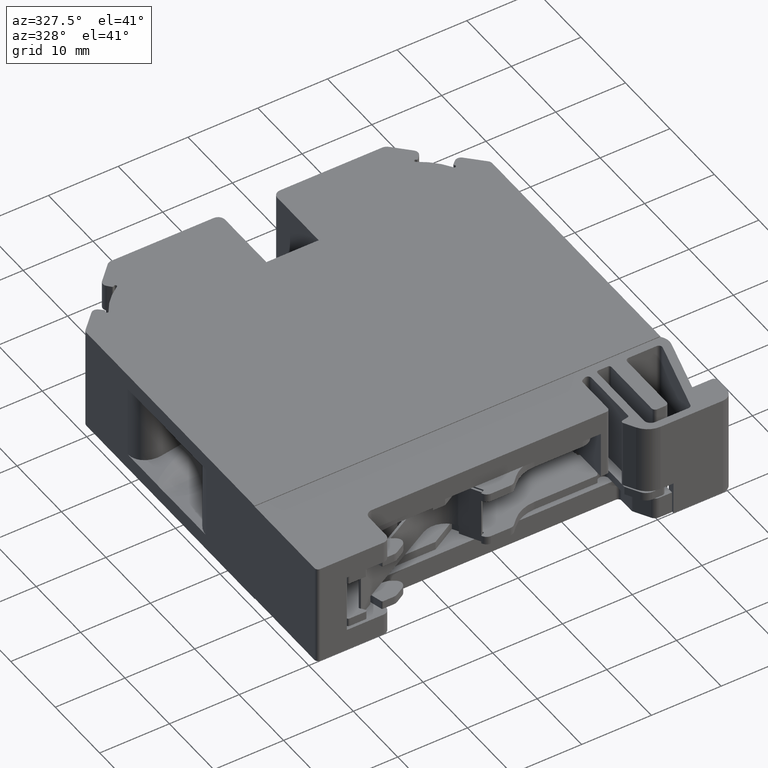
[diagram: clean part render]
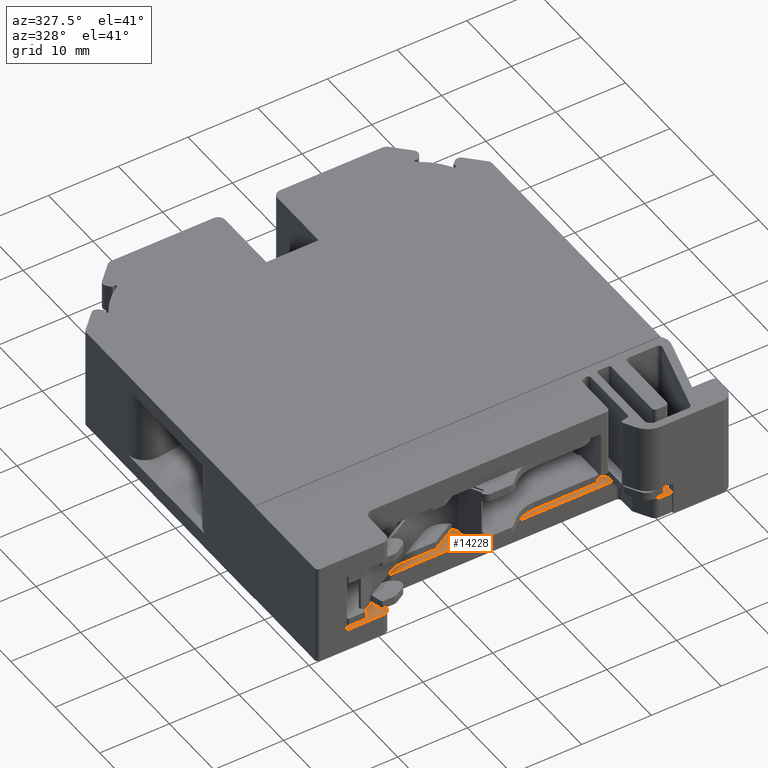
[diagram: same view with one face highlighted and labeled with its STEP entity id]
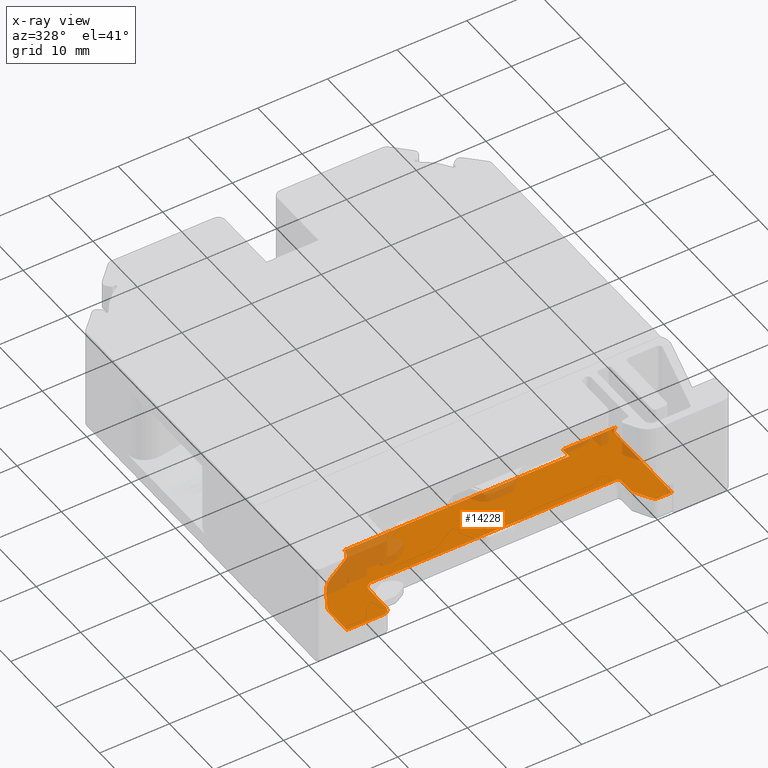
[diagram: x-ray of the same camera — body ghosted, the highlighted face saturated]
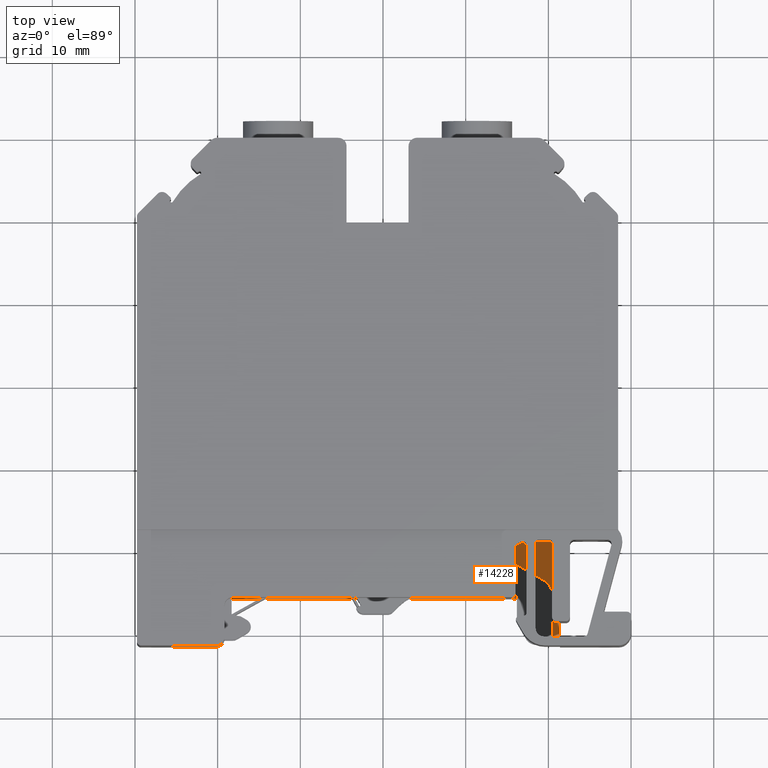
[diagram: same view with one face highlighted and labeled with its STEP entity id]
A machine part, auxiliary view. The second image highlights one B-rep face of the part: STEP entity #14228.
The next image is the same camera in x-ray: the body ghosted, the highlighted face saturated — about 19% of this face is hidden behind the body in this view.
A second angle (top view) of the same face is appended — the face is thin or edge-on in the first view.
In plain terms, the highlighted planar face has unit normal (-0, -0, -1).
Its self-contained STEP definition (entity closure, byte-faithful):
#722 = CARTESIAN_POINT ( 'NONE',  ( -9.182373477858451600, -96.56132526993910400, -108.4951853950753800 ) ) ;
#753 = CARTESIAN_POINT ( 'NONE',  ( -8.182373388613443800, -95.56131407969034800, -108.4951853950755700 ) ) ;
#767 = CARTESIAN_POINT ( 'NONE',  ( 29.52603889127261600, -101.1332000684360000, -108.4951853950821600 ) ) ;
#770 = CARTESIAN_POINT ( 'NONE',  ( 28.66001346110071100, -100.6332000215236900, -108.4951853950818600 ) ) ;
#771 = CARTESIAN_POINT ( 'NONE',  ( 32.08748125167868200, -87.38320129209705600, -108.4951853950789300 ) ) ;
#795 = CARTESIAN_POINT ( 'NONE',  ( -9.182373477883530200, -100.3832003462174800, -108.4951853950753800 ) ) ;
#811 = CARTESIAN_POINT ( 'NONE',  ( 31.35764037842765000, -101.1332000684356700, -108.4951853950822700 ) ) ;
#817 = CARTESIAN_POINT ( 'NONE',  ( -10.18237374994341100, -101.3832003462193100, -108.4951853950752000 ) ) ;
#840 = CARTESIAN_POINT ( 'NONE',  ( 31.35763746355057400, -88.38320141212136600, -108.4951853950822700 ) ) ;
#843 = CARTESIAN_POINT ( 'NONE',  ( 24.45763187254057100, -87.38320129209705600, -108.4951853950775700 ) ) ;
#945 = DIRECTION ( 'NONE',  ( 0.0000000000000000000, 0.0000000000000000000, 1.000000000000000000 ) ) ;
#947 = CARTESIAN_POINT ( 'NONE',  ( -13.18239060679382000, -97.59733846197760000, -108.4951853950743700 ) ) ;
#976 = DIRECTION ( 'NONE',  ( 1.000000000000000000, 0.0000000000000000000, 0.0000000000000000000 ) ) ;
#1956 = LINE ( 'NONE', #1979, #7068 ) ;
#1979 = CARTESIAN_POINT ( 'NONE',  ( -7.832360280724089700, -88.87787397200389700, -108.4951853950760100 ) ) ;
#1980 = DIRECTION ( 'NONE',  ( -0.0000000000000000000, -1.000000000000000000, 0.0000000000000000000 ) ) ;
#3159 = CARTESIAN_POINT ( 'NONE',  ( -15.43239094388466400, -101.3831984417975000, -108.4951853950747000 ) ) ;
#3324 = CARTESIAN_POINT ( 'NONE',  ( -15.13094716103084300, -96.47233841715346600, -108.4951853950743700 ) ) ;
#3357 = CARTESIAN_POINT ( 'NONE',  ( -7.832360280724086200, -88.87787397200381200, -108.4951853950757900 ) ) ;
#3361 = CARTESIAN_POINT ( 'NONE',  ( -7.832360280724088000, -88.84391962402993700, -108.4951853950758600 ) ) ;
#3402 = CARTESIAN_POINT ( 'NONE',  ( 27.42462696525889100, -98.49344757605811700, -108.4951853950816600 ) ) ;
#3404 = CARTESIAN_POINT ( 'NONE',  ( -13.80660845408597800, -94.17851721250438900, -108.4951853950748300 ) ) ;
#3409 = CARTESIAN_POINT ( 'NONE',  ( 24.45763187254063100, -88.84391962402993700, -108.4951853950815200 ) ) ;
#3427 = CARTESIAN_POINT ( 'NONE',  ( 26.85763427980725000, -95.56131808383656800, -108.4951853950814600 ) ) ;
#3431 = CARTESIAN_POINT ( 'NONE',  ( -15.43239018943153700, -97.59646913728329300, -108.4951853950743300 ) ) ;
#3453 = CARTESIAN_POINT ( 'NONE',  ( -11.88497784360102300, -92.25688605878271200, -108.4951853950750300 ) ) ;
#3466 = CARTESIAN_POINT ( 'NONE',  ( 27.35763968069512600, -98.24344822140024300, -108.4951853950815500 ) ) ;
#3488 = CARTESIAN_POINT ( 'NONE',  ( 27.35763424945268000, -96.06131711158846500, -108.4951853950814800 ) ) ;
#3491 = CARTESIAN_POINT ( 'NONE',  ( -8.732359627521443500, -90.43671932168889800, -108.4951853950756200 ) ) ;
#5110 = PLANE ( 'NONE',  #6902 ) ;
#5124 = FACE_OUTER_BOUND ( 'NONE', #10269, .T. ) ;
#5134 = CARTESIAN_POINT ( 'NONE',  ( 25.20763878795164800, -88.39914594549648500, -108.4951853950816600 ) ) ;
#5150 = DIRECTION ( 'NONE',  ( -1.000000000000000000, 0.0000000000000000000, 1.766263902812515100E-013 ) ) ;
#5151 = DIRECTION ( 'NONE',  ( -1.766263902812515100E-013, -2.118238310450105200E-014, -1.000000000000000000 ) ) ;
#5171 = VERTEX_POINT ( 'NONE', #722 ) ;
#5207 = VERTEX_POINT ( 'NONE', #753 ) ;
#5216 = VERTEX_POINT ( 'NONE', #771 ) ;
#5230 = VERTEX_POINT ( 'NONE', #767 ) ;
#5232 = VERTEX_POINT ( 'NONE', #770 ) ;
#5243 = VERTEX_POINT ( 'NONE', #795 ) ;
#5258 = VERTEX_POINT ( 'NONE', #811 ) ;
#5267 = VERTEX_POINT ( 'NONE', #817 ) ;
#5272 = VERTEX_POINT ( 'NONE', #840 ) ;
#5279 = VERTEX_POINT ( 'NONE', #843 ) ;
#6510 = VERTEX_POINT ( 'NONE', #3159 ) ;
#6624 = VECTOR ( 'NONE', #11511, 1000.000000000000000 ) ;
#6780 = CIRCLE ( 'NONE', #6892, 1.799999999999999600 ) ;
#6892 = AXIS2_PLACEMENT_3D ( 'NONE', #11501, #11505, #11524 ) ;
#6902 = AXIS2_PLACEMENT_3D ( 'NONE', #5134, #5151, #5150 ) ;
#7068 = VECTOR ( 'NONE', #1980, 1000.000000000000000 ) ;
#7137 = CIRCLE ( 'NONE', #7181, 2.249999499092280300 ) ;
#7181 = AXIS2_PLACEMENT_3D ( 'NONE', #947, #945, #976 ) ;
#7381 = CIRCLE ( 'NONE', #7396, 0.5000000000000004400 ) ;
#7396 = AXIS2_PLACEMENT_3D ( 'NONE', #11949, #11954, #11953 ) ;
#7451 = VECTOR ( 'NONE', #11881, 999.9999999999998900 ) ;
#7466 = AXIS2_PLACEMENT_3D ( 'NONE', #12090, #12093, #12053 ) ;
#7502 = VECTOR ( 'NONE', #12118, 1000.000000000000000 ) ;
#7516 = CIRCLE ( 'NONE', #7466, 0.4999999999996743200 ) ;
#7544 = CIRCLE ( 'NONE', #7557, 5.249998643993779800 ) ;
#7557 = AXIS2_PLACEMENT_3D ( 'NONE', #11467, #11461, #11483 ) ;
#7627 = VECTOR ( 'NONE', #11805, 1000.000000000000100 ) ;
#7798 = CIRCLE ( 'NONE', #7821, 0.9999999999999991100 ) ;
#7805 = AXIS2_PLACEMENT_3D ( 'NONE', #12524, #12565, #12569 ) ;
#7813 = CIRCLE ( 'NONE', #7805, 1.000000000000021800 ) ;
#7821 = AXIS2_PLACEMENT_3D ( 'NONE', #12549, #12574, #12582 ) ;
#7834 = VECTOR ( 'NONE', #12593, 1000.000000000000100 ) ;
#7836 = VECTOR ( 'NONE', #12628, 1000.000000000000000 ) ;
#7837 = VECTOR ( 'NONE', #12621, 1000.000000000000100 ) ;
#7840 = AXIS2_PLACEMENT_3D ( 'NONE', #12674, #12665, #12644 ) ;
#7842 = CIRCLE ( 'NONE', #7846, 0.9999999999996088700 ) ;
#7844 = CIRCLE ( 'NONE', #7840, 1.050000000000002300 ) ;
#7846 = AXIS2_PLACEMENT_3D ( 'NONE', #12599, #12610, #12611 ) ;
#7850 = VECTOR ( 'NONE', #12632, 1000.000000000000000 ) ;
#7856 = VECTOR ( 'NONE', #12727, 1000.000000000000000 ) ;
#7865 = VECTOR ( 'NONE', #12698, 1000.000000000000000 ) ;
#7868 = VECTOR ( 'NONE', #12746, 1000.000000000000100 ) ;
#7883 = VECTOR ( 'NONE', #12747, 999.9999999999998900 ) ;
#7893 = VECTOR ( 'NONE', #12734, 1000.000000000000000 ) ;
#8060 = VERTEX_POINT ( 'NONE', #3361 ) ;
#8082 = VERTEX_POINT ( 'NONE', #3357 ) ;
#8107 = VERTEX_POINT ( 'NONE', #3324 ) ;
#8151 = VERTEX_POINT ( 'NONE', #3431 ) ;
#8166 = VERTEX_POINT ( 'NONE', #3402 ) ;
#8167 = VERTEX_POINT ( 'NONE', #3427 ) ;
#8179 = VERTEX_POINT ( 'NONE', #3404 ) ;
#8182 = VERTEX_POINT ( 'NONE', #3409 ) ;
#8186 = VERTEX_POINT ( 'NONE', #3466 ) ;
#8197 = VERTEX_POINT ( 'NONE', #3488 ) ;
#8212 = VERTEX_POINT ( 'NONE', #3453 ) ;
#8220 = VERTEX_POINT ( 'NONE', #3491 ) ;
#9099 = ORIENTED_EDGE ( 'NONE', *, *, #17505, .F. ) ;
#9100 = ORIENTED_EDGE ( 'NONE', *, *, #17701, .F. ) ;
#9105 = ORIENTED_EDGE ( 'NONE', *, *, #17434, .F. ) ;
#9110 = ORIENTED_EDGE ( 'NONE', *, *, #17493, .F. ) ;
#9118 = ORIENTED_EDGE ( 'NONE', *, *, #17707, .F. ) ;
#9119 = ORIENTED_EDGE ( 'NONE', *, *, #17136, .T. ) ;
#9121 = ORIENTED_EDGE ( 'NONE', *, *, #17738, .F. ) ;
#9123 = ORIENTED_EDGE ( 'NONE', *, *, #17453, .F. ) ;
#9125 = ORIENTED_EDGE ( 'NONE', *, *, #17740, .F. ) ;
#9126 = ORIENTED_EDGE ( 'NONE', *, *, #17709, .F. ) ;
#9127 = ORIENTED_EDGE ( 'NONE', *, *, #17734, .F. ) ;
#9132 = ORIENTED_EDGE ( 'NONE', *, *, #17456, .F. ) ;
#9135 = ORIENTED_EDGE ( 'NONE', *, *, #17548, .F. ) ;
#9137 = ORIENTED_EDGE ( 'NONE', *, *, #17711, .F. ) ;
#9141 = ORIENTED_EDGE ( 'NONE', *, *, #17683, .T. ) ;
#9145 = ORIENTED_EDGE ( 'NONE', *, *, #17694, .F. ) ;
#9147 = ORIENTED_EDGE ( 'NONE', *, *, #17555, .F. ) ;
#9154 = ORIENTED_EDGE ( 'NONE', *, *, #17465, .F. ) ;
#9158 = ORIENTED_EDGE ( 'NONE', *, *, #17713, .T. ) ;
#9159 = ORIENTED_EDGE ( 'NONE', *, *, #17723, .F. ) ;
#9160 = ORIENTED_EDGE ( 'NONE', *, *, #17742, .F. ) ;
#9161 = ORIENTED_EDGE ( 'NONE', *, *, #17096, .T. ) ;
#9162 = ORIENTED_EDGE ( 'NONE', *, *, #17698, .F. ) ;
#10269 = EDGE_LOOP ( 'NONE', ( #9162, #9123, #9161, #9132, #9110, #9105, #9154, #9119, #9147, #9118, #9145, #9127, #9141, #9125, #9099, #9160, #9135, #9100, #9126, #9159, #9137, #9158, #9121 ) ) ;
#11461 = DIRECTION ( 'NONE',  ( -0.0000000000000000000, -0.0000000000000000000, -1.000000000000000000 ) ) ;
#11467 = CARTESIAN_POINT ( 'NONE',  ( -9.259976616430210000, -96.80351715436199800, -108.4951853950750100 ) ) ;
#11483 = DIRECTION ( 'NONE',  ( 1.000000000000000000, 7.930166509866378700E-015, 0.0000000000000000000 ) ) ;
#11501 = CARTESIAN_POINT ( 'NONE',  ( -9.632360280724078900, -88.87787397200381200, -108.4951853950756100 ) ) ;
#11505 = DIRECTION ( 'NONE',  ( 0.0000000000000000000, 0.0000000000000000000, 1.000000000000000000 ) ) ;
#11506 = LINE ( 'NONE', #11534, #6624 ) ;
#11511 = DIRECTION ( 'NONE',  ( 1.000000000000000000, -0.0000000000000000000, -1.766263902812515100E-013 ) ) ;
#11524 = DIRECTION ( 'NONE',  ( 1.000000000000000000, 0.0000000000000000000, 0.0000000000000000000 ) ) ;
#11534 = CARTESIAN_POINT ( 'NONE',  ( 25.20763878795164800, -88.84391962402993700, -108.4951853950816600 ) ) ;
#11785 = LINE ( 'NONE', #11799, #7627 ) ;
#11799 = CARTESIAN_POINT ( 'NONE',  ( -15.13094714392770600, -96.47233838752988800, -108.4951853950743900 ) ) ;
#11805 = DIRECTION ( 'NONE',  ( 0.5000001180687242400, 0.8660253356174181200, -9.955082964624122600E-014 ) ) ;
#11881 = DIRECTION ( 'NONE',  ( 0.8660251942694885400, 0.5000003628903629800, -1.639260010307463600E-013 ) ) ;
#11888 = LINE ( 'NONE', #11892, #7451 ) ;
#11892 = CARTESIAN_POINT ( 'NONE',  ( -11.88497784360102300, -92.25688605878271200, -108.4951853950750400 ) ) ;
#11949 = CARTESIAN_POINT ( 'NONE',  ( 26.85763424945354700, -96.06131808383648300, -108.4951853950814600 ) ) ;
#11953 = DIRECTION ( 'NONE',  ( 1.000000000000000000, 0.0000000000000000000, 0.0000000000000000000 ) ) ;
#11954 = DIRECTION ( 'NONE',  ( 0.0000000000000000000, 0.0000000000000000000, 1.000000000000000000 ) ) ;
#12053 = DIRECTION ( 'NONE',  ( 1.000000000000000000, 0.0000000000000000000, 0.0000000000000000000 ) ) ;
#12090 = CARTESIAN_POINT ( 'NONE',  ( 27.85763968069325000, -98.24344759951456800, -108.4951853950816100 ) ) ;
#12093 = DIRECTION ( 'NONE',  ( -0.0000000000000000000, -0.0000000000000000000, -1.000000000000000000 ) ) ;
#12112 = CARTESIAN_POINT ( 'NONE',  ( -15.43239094388501300, -88.39914594549648500, -108.4951853950745000 ) ) ;
#12117 = LINE ( 'NONE', #12112, #7502 ) ;
#12118 = DIRECTION ( 'NONE',  ( -3.741367865302590800E-027, 1.000000000000000000, -2.118238310450105200E-014 ) ) ;
#12524 = CARTESIAN_POINT ( 'NONE',  ( -8.182373477889719000, -96.56131408426124100, -108.4951853950755400 ) ) ;
#12549 = CARTESIAN_POINT ( 'NONE',  ( -10.18237347788358000, -100.3832003462194500, -108.4951853950752400 ) ) ;
#12565 = DIRECTION ( 'NONE',  ( -1.511248252100349900E-013, -2.454031171370849900E-014, -1.000000000000000000 ) ) ;
#12569 = DIRECTION ( 'NONE',  ( 1.000000000000000000, 0.0000000000000000000, -1.526556658859556900E-013 ) ) ;
#12574 = DIRECTION ( 'NONE',  ( -1.511248252100349900E-013, -2.454031171370849900E-014, -1.000000000000000000 ) ) ;
#12580 = LINE ( 'NONE', #12584, #7836 ) ;
#12582 = DIRECTION ( 'NONE',  ( 1.000000000000000000, 0.0000000000000000000, -1.526556658859591500E-013 ) ) ;
#12584 = CARTESIAN_POINT ( 'NONE',  ( 24.45763187254057100, -88.39914594549648500, -108.4951853950815300 ) ) ;
#12592 = LINE ( 'NONE', #12608, #7834 ) ;
#12593 = DIRECTION ( 'NONE',  ( -0.4999999530874920100, 0.8660254308693859900, -0.0000000000000000000 ) ) ;
#12595 = LINE ( 'NONE', #12620, #7837 ) ;
#12599 = CARTESIAN_POINT ( 'NONE',  ( 29.52603889196974800, -100.1332000684363800, -108.4951853950820200 ) ) ;
#12608 = CARTESIAN_POINT ( 'NONE',  ( 28.66001346110099800, -100.6332000215241900, -108.4951853950817100 ) ) ;
#12610 = DIRECTION ( 'NONE',  ( -0.0000000000000000000, -0.0000000000000000000, -1.000000000000000000 ) ) ;
#12611 = DIRECTION ( 'NONE',  ( 1.000000000000000000, 0.0000000000000000000, 0.0000000000000000000 ) ) ;
#12613 = CARTESIAN_POINT ( 'NONE',  ( -19.26141158240254800, -101.3831954061447600, -108.4951853950751800 ) ) ;
#12620 = CARTESIAN_POINT ( 'NONE',  ( 31.35763746355054600, -88.38320129209689900, -108.4951853950822700 ) ) ;
#12621 = DIRECTION ( 'NONE',  ( 2.286178339864773300E-007, -0.9999999999999738000, -0.0000000000000000000 ) ) ;
#12624 = LINE ( 'NONE', #12613, #7850 ) ;
#12628 = DIRECTION ( 'NONE',  ( -3.741367865302590800E-027, 1.000000000000000000, -2.118238310450105200E-014 ) ) ;
#12632 = DIRECTION ( 'NONE',  ( -0.9999999999998520100, 5.441187299548519600E-007, -0.0000000000000000000 ) ) ;
#12634 = CARTESIAN_POINT ( 'NONE',  ( 31.35764037842765000, -101.1332000684360000, -108.4951853950822700 ) ) ;
#12644 = DIRECTION ( 'NONE',  ( 1.000000000000000000, 0.0000000000000000000, 0.0000000000000000000 ) ) ;
#12665 = DIRECTION ( 'NONE',  ( -0.0000000000000000000, -0.0000000000000000000, -1.000000000000000000 ) ) ;
#12670 = LINE ( 'NONE', #12634, #7865 ) ;
#12674 = CARTESIAN_POINT ( 'NONE',  ( 32.40763746355055000, -88.38320129209699900, -108.4951853950822700 ) ) ;
#12687 = CARTESIAN_POINT ( 'NONE',  ( 25.50763761203100100, -95.56131792956765000, -108.4951853950814600 ) ) ;
#12692 = CARTESIAN_POINT ( 'NONE',  ( -9.182373477889719000, -96.56131408428728900, -108.4951853950753800 ) ) ;
#12698 = DIRECTION ( 'NONE',  ( -1.000000000000000000, -0.0000000000000000000, -0.0000000000000000000 ) ) ;
#12714 = LINE ( 'NONE', #12692, #7856 ) ;
#12727 = DIRECTION ( 'NONE',  ( 1.619486540971216600E-012, -1.000000000000000000, -0.0000000000000000000 ) ) ;
#12729 = LINE ( 'NONE', #12687, #7883 ) ;
#12734 = DIRECTION ( 'NONE',  ( 1.000000000000000000, 0.0000000000000000000, 0.0000000000000000000 ) ) ;
#12746 = DIRECTION ( 'NONE',  ( -2.488962475192023000E-006, 0.9999999999969024800, -0.0000000000000000000 ) ) ;
#12747 = DIRECTION ( 'NONE',  ( -0.9999999999999935600, 1.142735541422321200E-007, -0.0000000000000000000 ) ) ;
#12751 = LINE ( 'NONE', #12762, #7893 ) ;
#12756 = CARTESIAN_POINT ( 'NONE',  ( 27.35763968069354800, -98.24344758835989900, -108.4951853950814900 ) ) ;
#12762 = CARTESIAN_POINT ( 'NONE',  ( -19.72141239582554900, -87.38320129209705600, -108.4951853950755900 ) ) ;
#12773 = LINE ( 'NONE', #12756, #7868 ) ;
#14228 = ADVANCED_FACE ( 'NONE', ( #5124 ), #5110, .F. ) ;
#17096 = EDGE_CURVE ( 'NONE', #8060, #8082, #1956, .T. ) ;
#17136 = EDGE_CURVE ( 'NONE', #8107, #8151, #7137, .T. ) ;
#17434 = EDGE_CURVE ( 'NONE', #8179, #8212, #7544, .T. ) ;
#17453 = EDGE_CURVE ( 'NONE', #8060, #8182, #11506, .T. ) ;
#17456 = EDGE_CURVE ( 'NONE', #8220, #8082, #6780, .T. ) ;
#17465 = EDGE_CURVE ( 'NONE', #8107, #8179, #11785, .T. ) ;
#17493 = EDGE_CURVE ( 'NONE', #8212, #8220, #11888, .T. ) ;
#17505 = EDGE_CURVE ( 'NONE', #8197, #8167, #7381, .T. ) ;
#17548 = EDGE_CURVE ( 'NONE', #8166, #8186, #7516, .T. ) ;
#17555 = EDGE_CURVE ( 'NONE', #6510, #8151, #12117, .T. ) ;
#17683 = EDGE_CURVE ( 'NONE', #5171, #5207, #7813, .T. ) ;
#17694 = EDGE_CURVE ( 'NONE', #5243, #5267, #7798, .T. ) ;
#17698 = EDGE_CURVE ( 'NONE', #8182, #5279, #12580, .T. ) ;
#17701 = EDGE_CURVE ( 'NONE', #5232, #8166, #12592, .T. ) ;
#17707 = EDGE_CURVE ( 'NONE', #5267, #6510, #12624, .T. ) ;
#17709 = EDGE_CURVE ( 'NONE', #5230, #5232, #7842, .T. ) ;
#17711 = EDGE_CURVE ( 'NONE', #5272, #5258, #12595, .T. ) ;
#17713 = EDGE_CURVE ( 'NONE', #5272, #5216, #7844, .T. ) ;
#17723 = EDGE_CURVE ( 'NONE', #5258, #5230, #12670, .T. ) ;
#17734 = EDGE_CURVE ( 'NONE', #5171, #5243, #12714, .T. ) ;
#17738 = EDGE_CURVE ( 'NONE', #5279, #5216, #12751, .T. ) ;
#17740 = EDGE_CURVE ( 'NONE', #8167, #5207, #12729, .T. ) ;
#17742 = EDGE_CURVE ( 'NONE', #8186, #8197, #12773, .T. ) ;